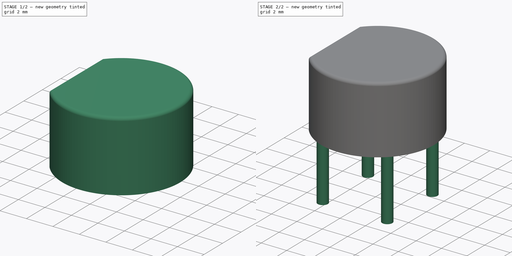
[diagram: build sequence overview — one tinted view per stage of 2, left to right]
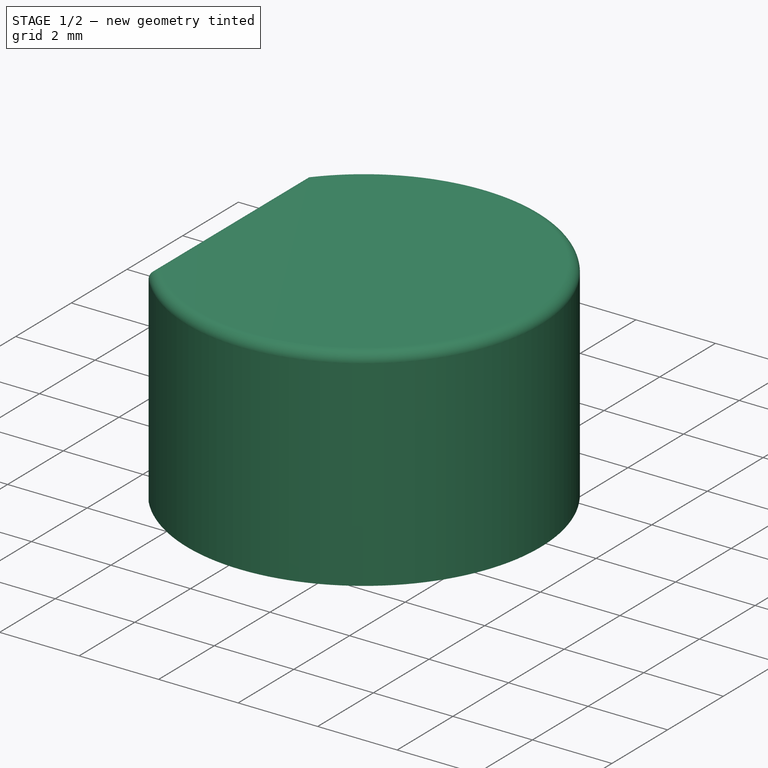
[diagram: stage 1 of 2 — iso view after this stage's code; geometry added in this stage tinted green]
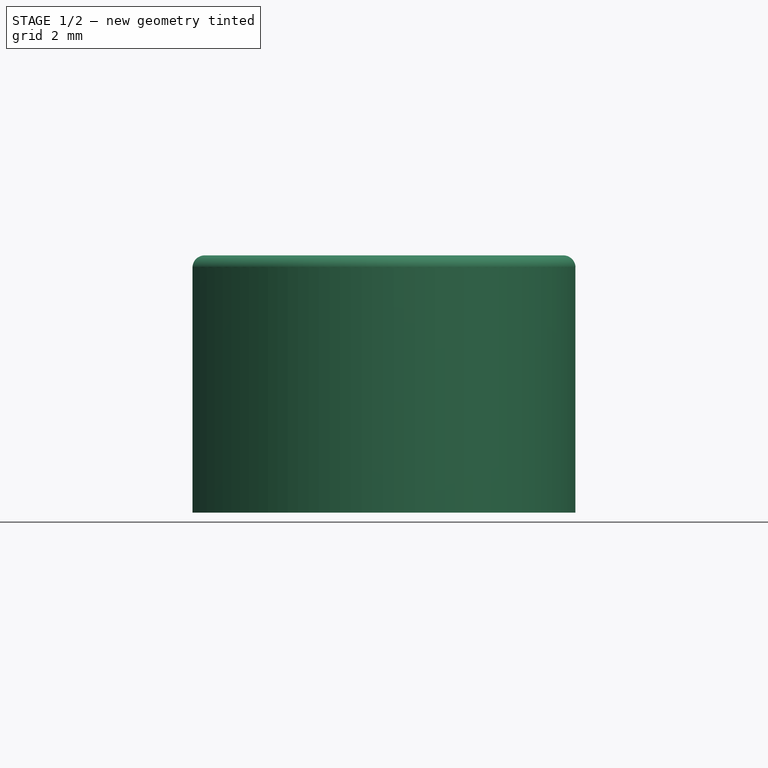
[diagram: stage 1 of 2 — front view after this stage's code; geometry added in this stage tinted green]
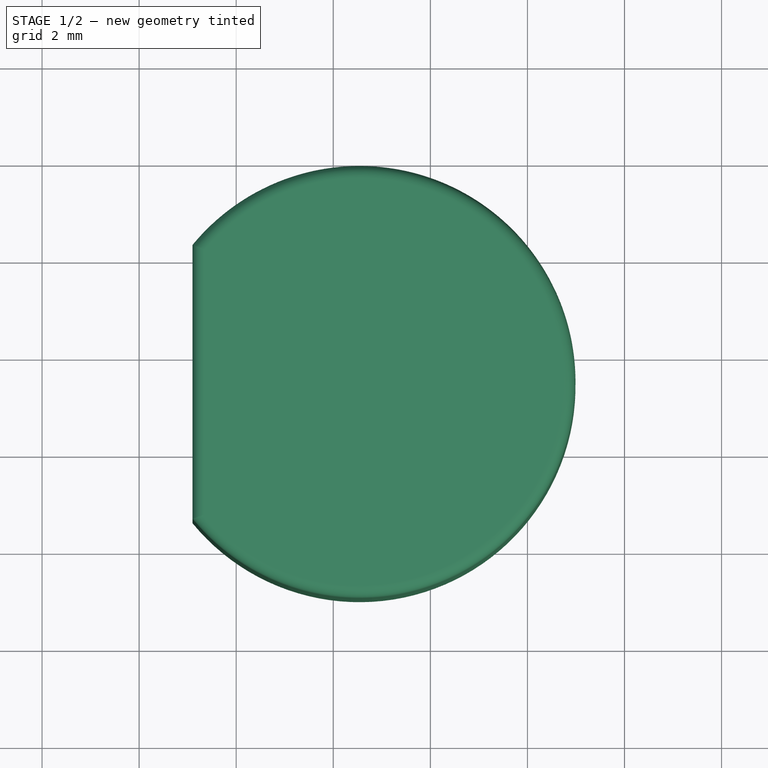
[diagram: stage 1 of 2 — top view after this stage's code; geometry added in this stage tinted green]
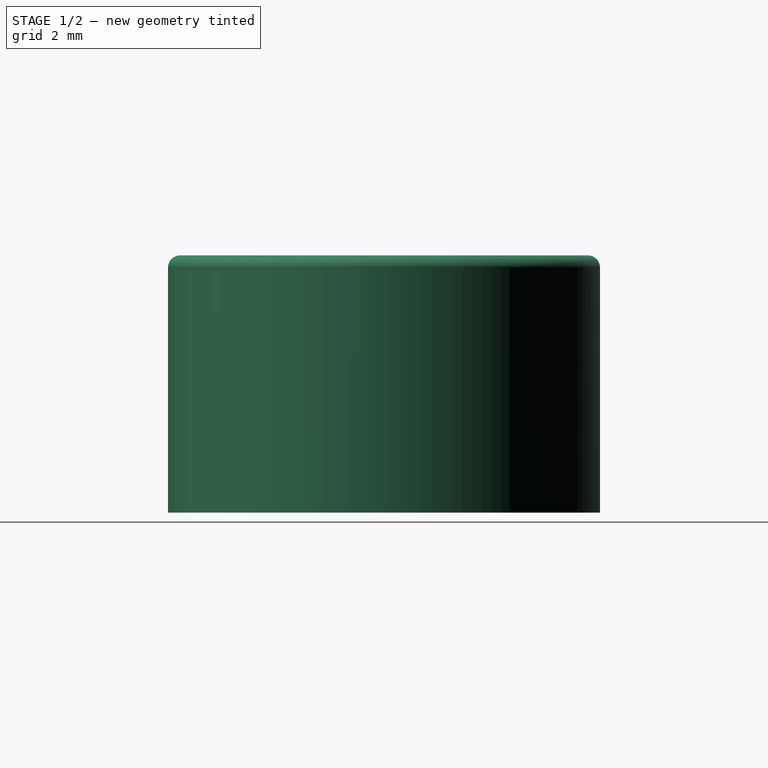
[diagram: stage 1 of 2 — right view after this stage's code; geometry added in this stage tinted green]
FCSTD DOCUMENT  (FreeCAD 0.16R6712 (Git))
Label: Diode_Bridge_Round_D8.9mm
License: All rights reserved
LicenseURL: http://en.wikipedia.org/wiki/All_rights_reserved
objects: Sketcher::SketchObject×2, PartDesign::Pad×2, PartDesign::Fillet×1, Part::MultiFuse×1
note: 8 computed .brp shape members not serialized (recipe doc carries the construction recipe); baked Part::Feature solids carry a one-line shape summary decoded from their .brp

FEATURE [Sketcher::SketchObject] Sketch001
  expr: Constraints[4] = 8.9 / 2
  sketch-geometry (2):
    g0: LineSegment StartX=-0.9 StartY=0.282924 StartZ=0 EndX=-0.9 EndY=-5.36292 EndZ=0
    g1: ArcOfCircle CenterX=2.54 CenterY=-2.54 CenterZ=0 NormalX=0 NormalY=0 NormalZ=1 Radius=4.45 StartAngle=3.82878 EndAngle=8.73759
  constraints (7):
    c: Vertical(g0)
    c: Coincident(g1,g0)
    c: DistanceX(g-1,g1) = 2.54
    c: DistanceY(g1,g-1) = 2.54
    c: Radius(g1) = 4.45
    c: DistanceX(g0,g-1) = 0.9
    c: Coincident(g1,g0)
FEATURE [PartDesign::Pad] Pad001
  Length = 5.3
  Length2 = 100
  Sketch = -> Sketch001
  Type = 0
FEATURE [PartDesign::Fillet] Fillet
  Base = -> Pad001 [Edge4,Edge6]
  Radius = 0.25
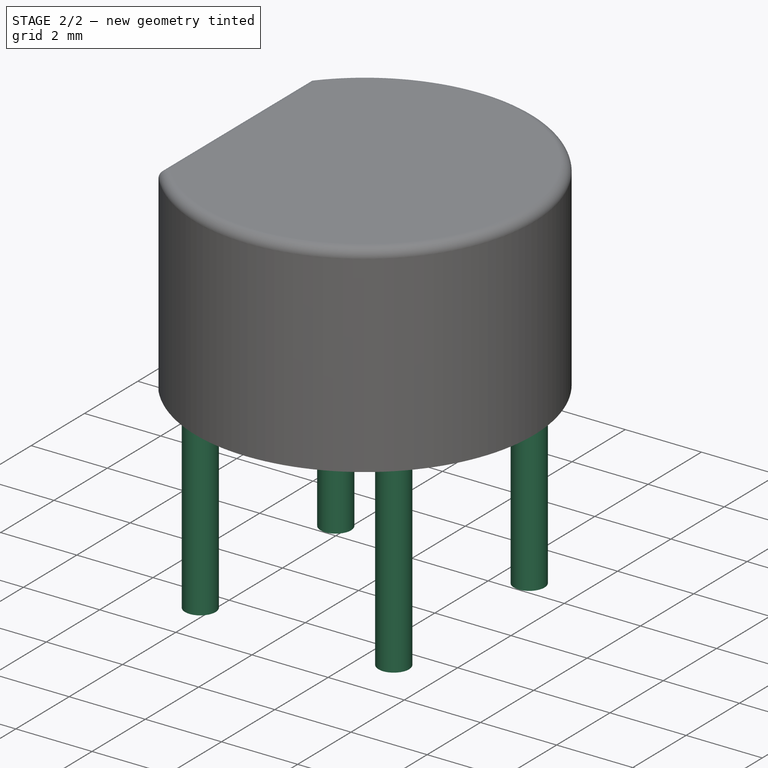
[diagram: stage 2 of 2 — iso view after this stage's code; geometry added in this stage tinted green]
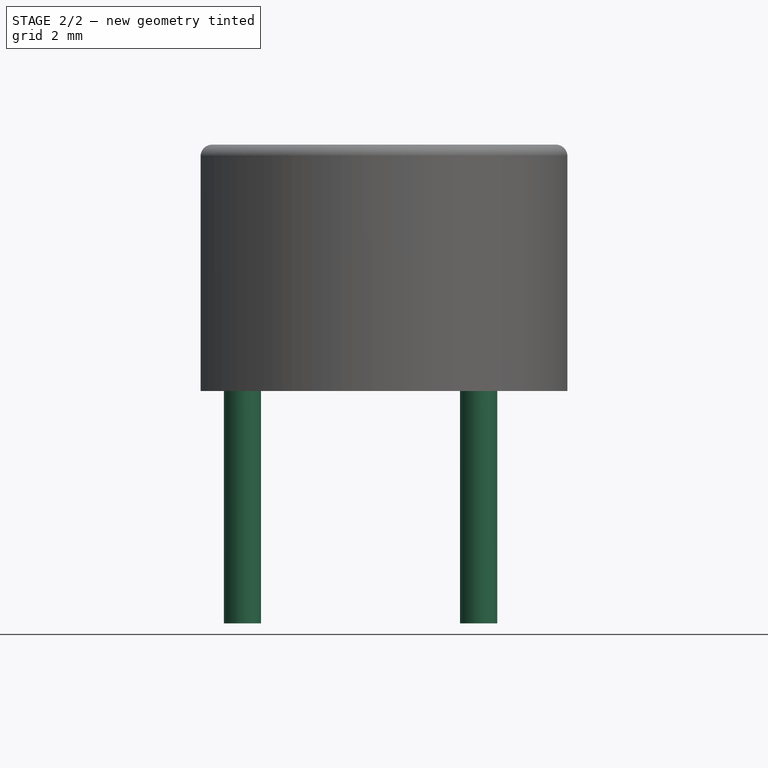
[diagram: stage 2 of 2 — front view after this stage's code; geometry added in this stage tinted green]
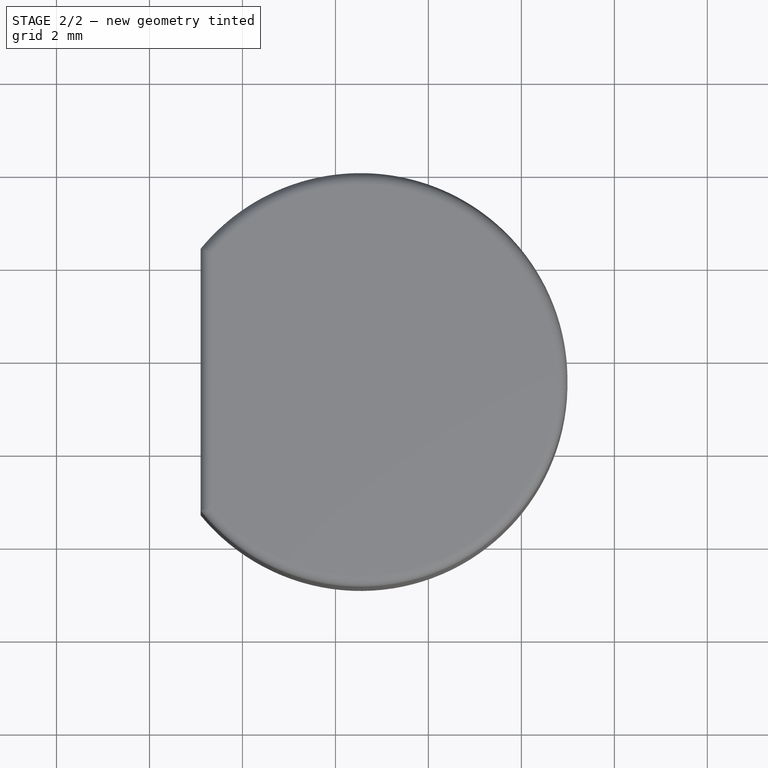
[diagram: stage 2 of 2 — top view after this stage's code; geometry added in this stage tinted green]
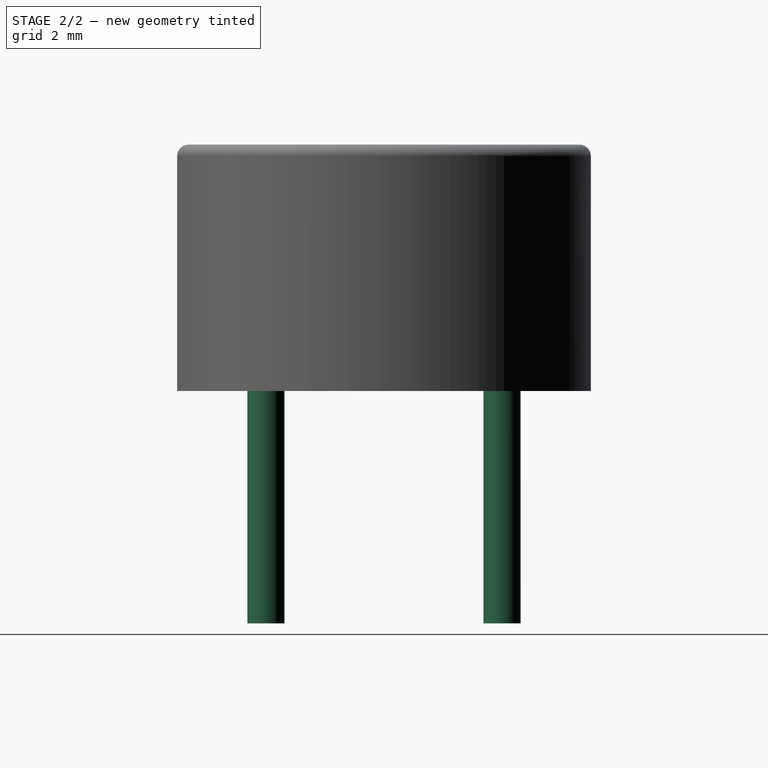
[diagram: stage 2 of 2 — right view after this stage's code; geometry added in this stage tinted green]
FEATURE [Sketcher::SketchObject] Sketch
  sketch-geometry (8):
    g0: LineSegment [constr] StartX=0 StartY=0 StartZ=0 EndX=5.08 EndY=0 EndZ=0
    g1: LineSegment [constr] StartX=5.08 StartY=0 StartZ=0 EndX=5.08 EndY=-5.08 EndZ=0
    g2: LineSegment [constr] StartX=5.08 StartY=-5.08 StartZ=0 EndX=0 EndY=-5.08 EndZ=0
    g3: LineSegment [constr] StartX=0 StartY=-5.08 StartZ=0 EndX=0 EndY=0 EndZ=0
    g4: Circle CenterX=0 CenterY=0 CenterZ=0 NormalX=0 NormalY=0 NormalZ=1 Radius=0.4
    g5: Circle CenterX=5.08 CenterY=0 CenterZ=0 NormalX=0 NormalY=0 NormalZ=1 Radius=0.4
    g6: Circle CenterX=5.08 CenterY=-5.08 CenterZ=0 NormalX=0 NormalY=0 NormalZ=1 Radius=0.4
    g7: Circle CenterX=0 CenterY=-5.08 CenterZ=0 NormalX=0 NormalY=0 NormalZ=1 Radius=0.4
  constraints (19):
    c: Coincident(g0,g1)
    c: Coincident(g1,g2)
    c: Coincident(g2,g3)
    c: Coincident(g3,g0)
    c: Horizontal(g0)
    c: Horizontal(g2)
    c: Vertical(g1)
    c: Vertical(g3)
    c: Coincident(g0,g-1)
    c: Equal(g1,g0)
    c: DistanceX(g0,g0) = 5.08
    c: Coincident(g4,g-1)
    c: Coincident(g5,g0)
    c: Coincident(g6,g1)
    c: Coincident(g7,g2)
    c: Equal(g7,g6)
    c: Equal(g6,g5)
    c: Equal(g5,g4)
    c: Radius(g4) = 0.4
FEATURE [PartDesign::Pad] Pad
  Length = 5
  Length2 = 100
  Reversed = true
  Sketch = -> Sketch
  Type = 0
FEATURE [Part::MultiFuse] Pad_mp_cp  label="Diode_Bridge_Round_D8.9mm"
  Shapes = -> [Pad,Fillet]
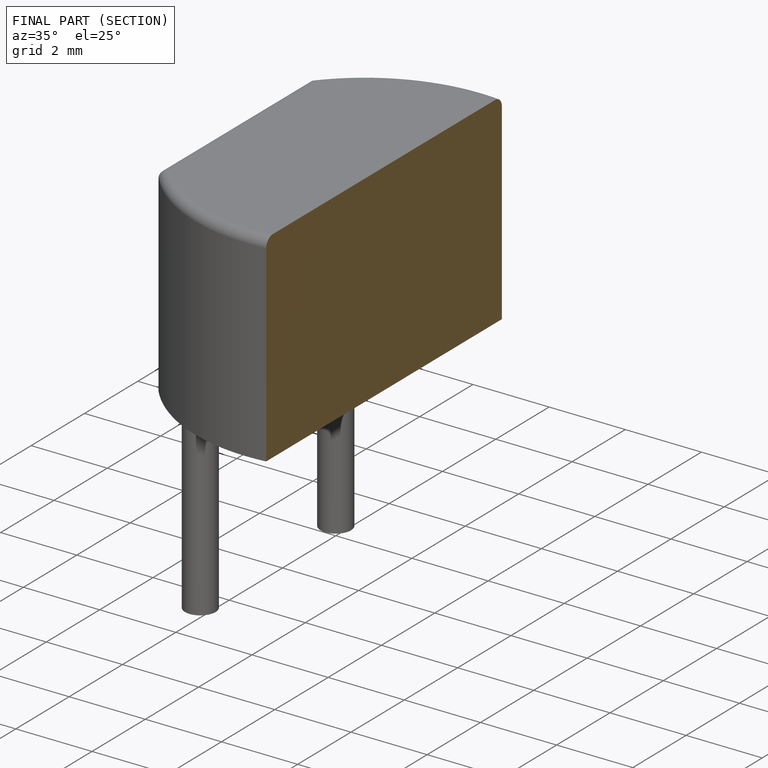
[diagram: finished part — half-section view (interior)]
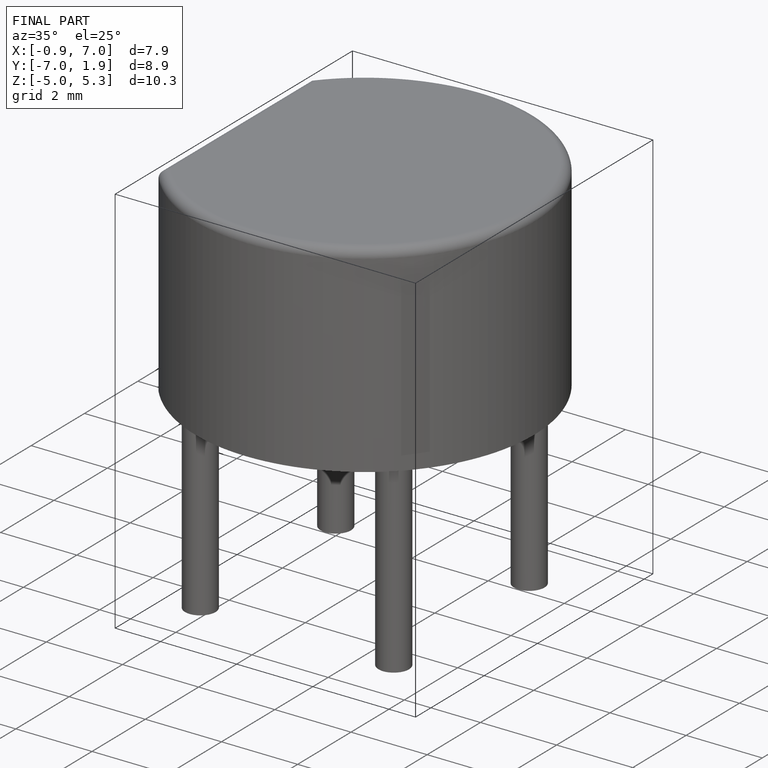
[diagram: finished part — iso view with bounding-box wireframe]
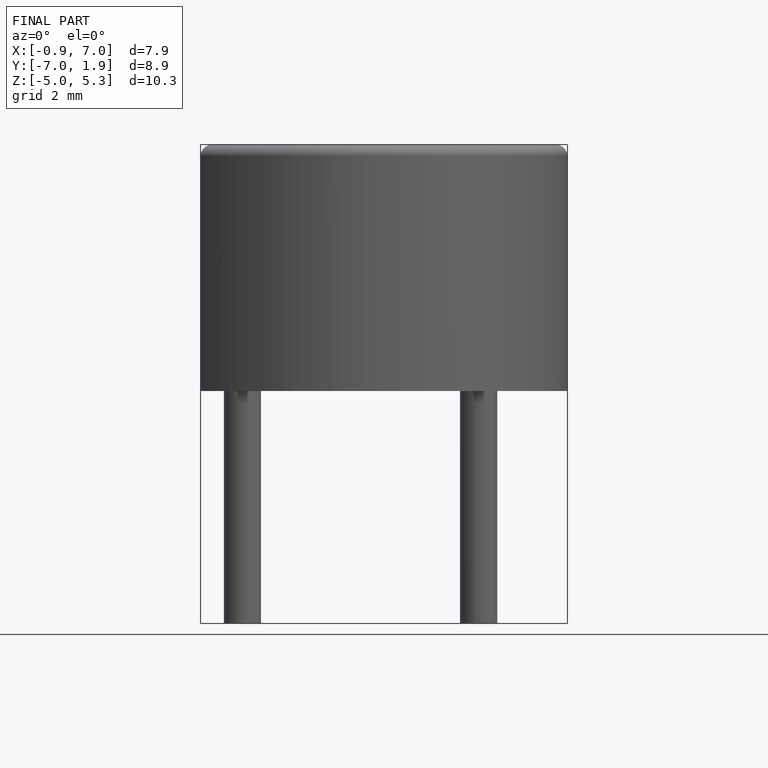
[diagram: finished part — front view with bounding-box wireframe]
